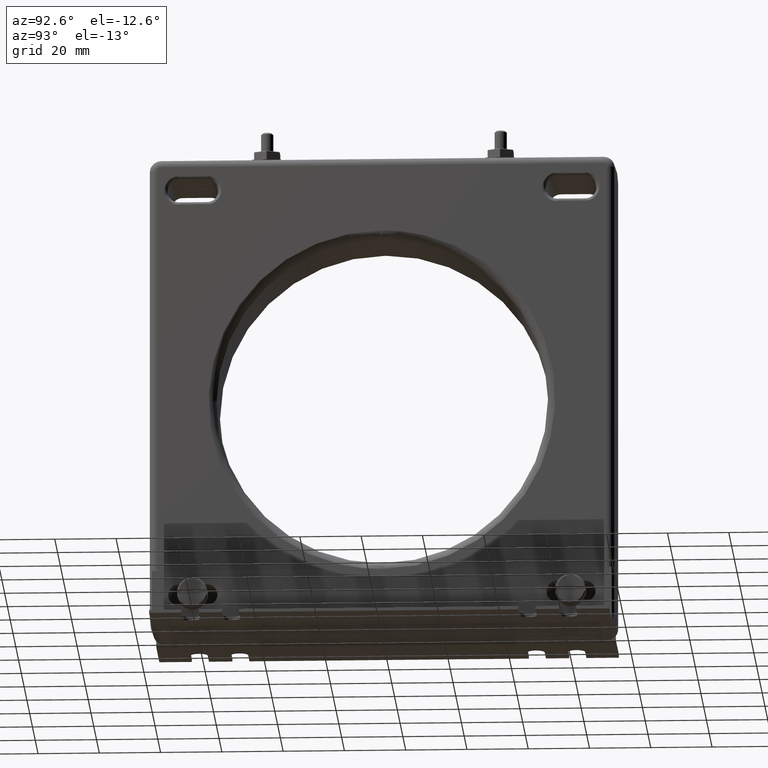
[diagram: clean part render]
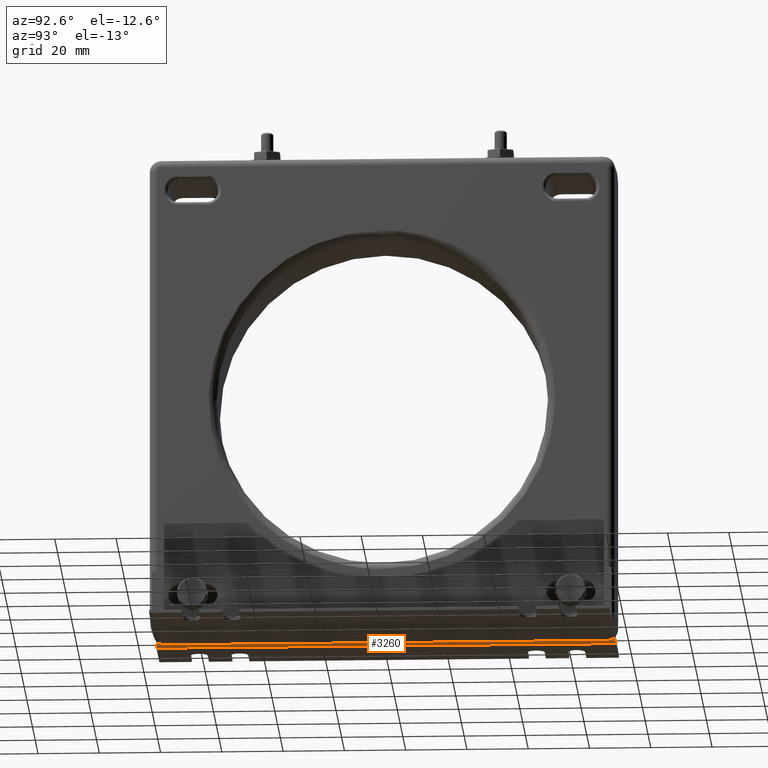
[diagram: same view with one face highlighted and labeled with its STEP entity id]
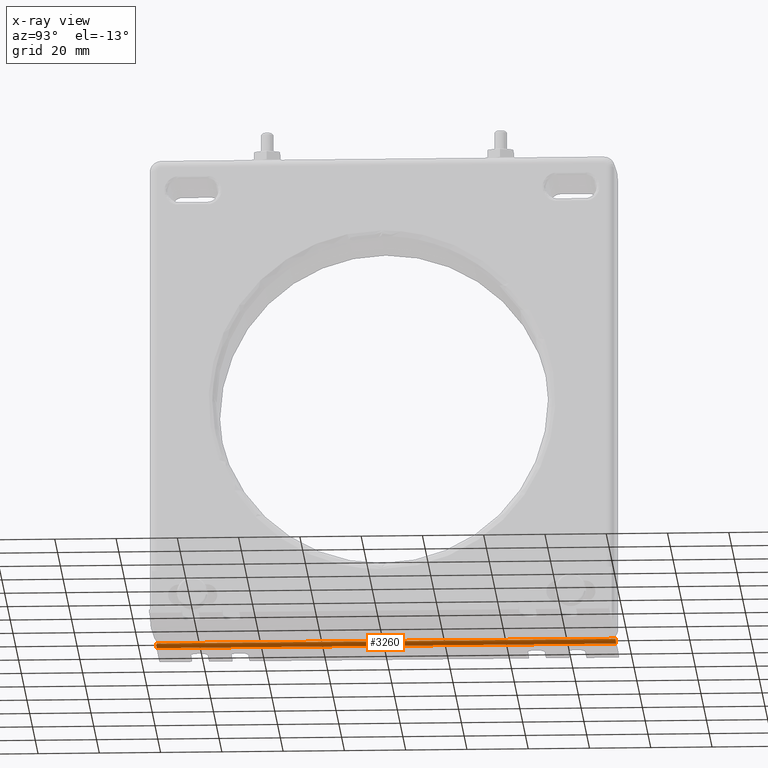
[diagram: x-ray of the same camera — body ghosted, the highlighted face saturated]
A machine part, auxiliary view. The second image highlights one B-rep face of the part: STEP entity #3260.
The next image is the same camera in x-ray: the body ghosted, the highlighted face saturated — about 0% of this face is hidden behind the body in this view.
In plain terms, the highlighted cylindrical surface (edge-blend (fillet) strip) has radius 1.3 mm, axis along (-0, 1, 0).
Its self-contained STEP definition (entity closure, byte-faithful):
#683 = CARTESIAN_POINT ( 'NONE',  ( 0.03937007874015657771, 2.952755905511811108, -2.918818897637795562 ) ) ;
#1457 = CARTESIAN_POINT ( 'NONE',  ( -0.01181102362204810435, 2.952755905511811108, -2.970000000000000195 ) ) ;
#1483 = DIRECTION ( 'NONE',  ( -2.775557561562889872E-16, 1.000000000000000000, 0.000000000000000000 ) ) ;
#1788 = AXIS2_PLACEMENT_3D ( 'NONE', #7716, #1483, #7516 ) ;
#1833 = AXIS2_PLACEMENT_3D ( 'NONE', #13349, #7148, #2026 ) ;
#1844 = DIRECTION ( 'NONE',  ( -1.000000000000000000, 0.000000000000000000, 0.000000000000000000 ) ) ;
#2026 = DIRECTION ( 'NONE',  ( -1.000000000000000000, 0.000000000000000000, 0.000000000000000000 ) ) ;
#2456 = CARTESIAN_POINT ( 'NONE',  ( -0.01181102362204646851, -2.952755905511811108, -2.970000000000000195 ) ) ;
#2783 = EDGE_CURVE ( 'NONE', #11432, #10693, #4032, .T. ) ;
#3260 = ADVANCED_FACE ( 'NONE', ( #10422 ), #5169, .T. ) ;
#3447 = LINE ( 'NONE', #1457, #3468 ) ;
#3468 = VECTOR ( 'NONE', #9799, 39.37007874015748143 ) ;
#3833 = ORIENTED_EDGE ( 'NONE', *, *, #6195, .T. ) ;
#3954 = CARTESIAN_POINT ( 'NONE',  ( -0.01181102362204811129, 2.952755905511811108, -2.918818897637795562 ) ) ;
#4032 = LINE ( 'NONE', #683, #7051 ) ;
#4244 = EDGE_CURVE ( 'NONE', #10693, #4303, #8108, .T. ) ;
#4303 = VERTEX_POINT ( 'NONE', #2456 ) ;
#5169 = CYLINDRICAL_SURFACE ( 'NONE', #1833, 0.05118110236220473064 ) ;
#5351 = CIRCLE ( 'NONE', #6423, 0.05118110236220473064 ) ;
#6195 = EDGE_CURVE ( 'NONE', #4303, #10126, #3447, .T. ) ;
#6342 = ORIENTED_EDGE ( 'NONE', *, *, #2783, .T. ) ;
#6423 = AXIS2_PLACEMENT_3D ( 'NONE', #3954, #11201, #1844 ) ;
#6653 = CARTESIAN_POINT ( 'NONE',  ( -0.01181102362204810956, 2.952755905511811108, -2.970000000000000195 ) ) ;
#7051 = VECTOR ( 'NONE', #7110, 39.37007874015748143 ) ;
#7110 = DIRECTION ( 'NONE',  ( 2.775557561562889872E-16, -1.000000000000000000, 0.000000000000000000 ) ) ;
#7118 = ORIENTED_EDGE ( 'NONE', *, *, #10423, .T. ) ;
#7148 = DIRECTION ( 'NONE',  ( -2.775557561562889872E-16, 1.000000000000000000, 0.000000000000000000 ) ) ;
#7516 = DIRECTION ( 'NONE',  ( -1.000000000000000000, 0.000000000000000000, 0.000000000000000000 ) ) ;
#7588 = CARTESIAN_POINT ( 'NONE',  ( 0.03937007874015821529, -2.952755905511811108, -2.918818897637795562 ) ) ;
#7716 = CARTESIAN_POINT ( 'NONE',  ( -0.01181102362204647371, -2.952755905511811108, -2.918818897637795562 ) ) ;
#8108 = CIRCLE ( 'NONE', #1788, 0.05118110236220473064 ) ;
#9174 = ORIENTED_EDGE ( 'NONE', *, *, #4244, .T. ) ;
#9799 = DIRECTION ( 'NONE',  ( -2.775557561562889872E-16, 1.000000000000000000, 0.000000000000000000 ) ) ;
#10126 = VERTEX_POINT ( 'NONE', #6653 ) ;
#10422 = FACE_OUTER_BOUND ( 'NONE', #10457, .T. ) ;
#10423 = EDGE_CURVE ( 'NONE', #10126, #11432, #5351, .T. ) ;
#10457 = EDGE_LOOP ( 'NONE', ( #9174, #3833, #7118, #6342 ) ) ;
#10693 = VERTEX_POINT ( 'NONE', #7588 ) ;
#11201 = DIRECTION ( 'NONE',  ( 2.775557561562889872E-16, -1.000000000000000000, -0.000000000000000000 ) ) ;
#11432 = VERTEX_POINT ( 'NONE', #11835 ) ;
#11835 = CARTESIAN_POINT ( 'NONE',  ( 0.03937007874015657771, 2.952755905511811108, -2.918818897637795562 ) ) ;
#13349 = CARTESIAN_POINT ( 'NONE',  ( -0.01181102362204811129, 2.952755905511811108, -2.918818897637795562 ) ) ;